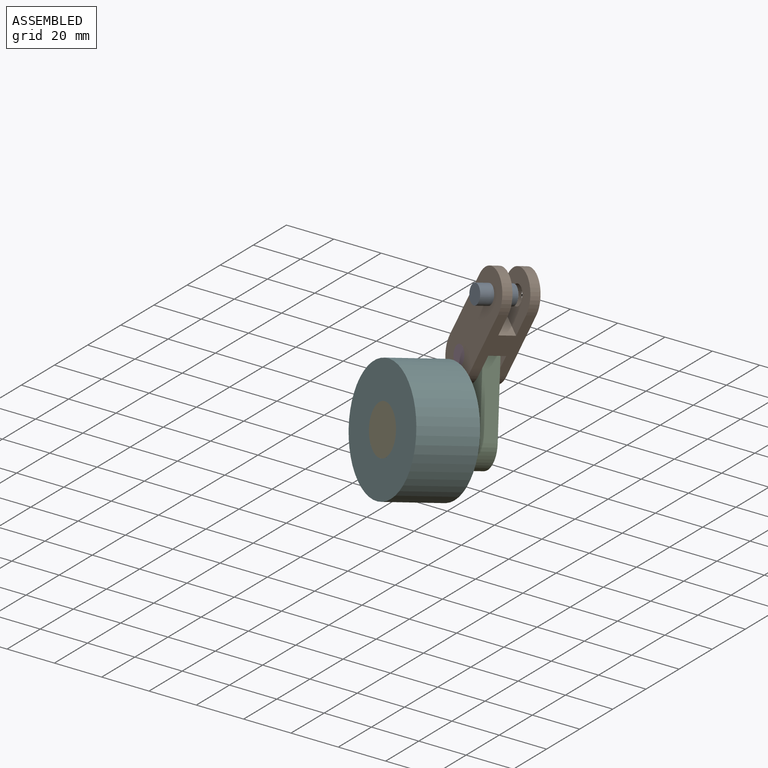
[diagram: assembled view]
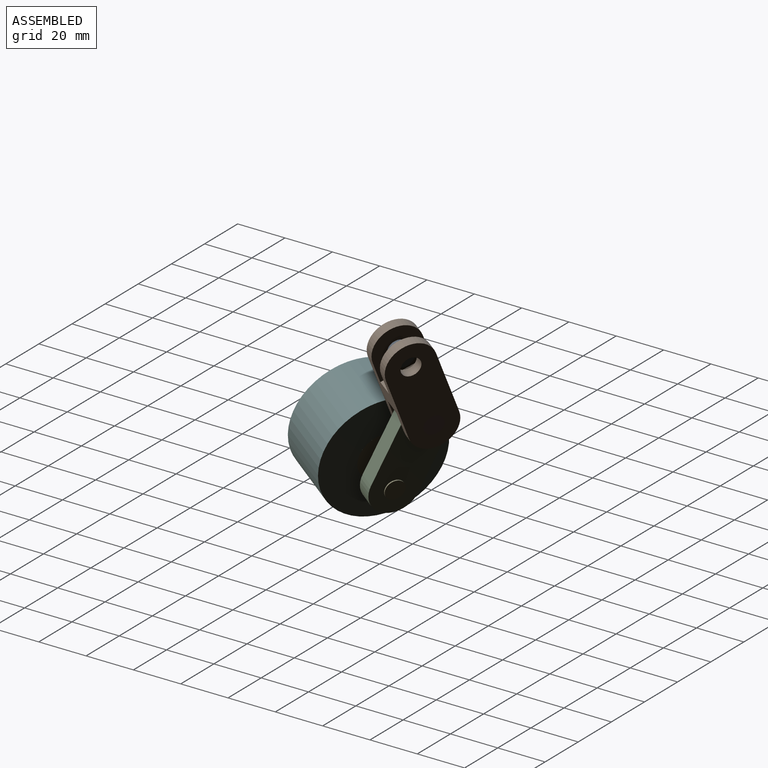
[diagram: assembled view, second angle]
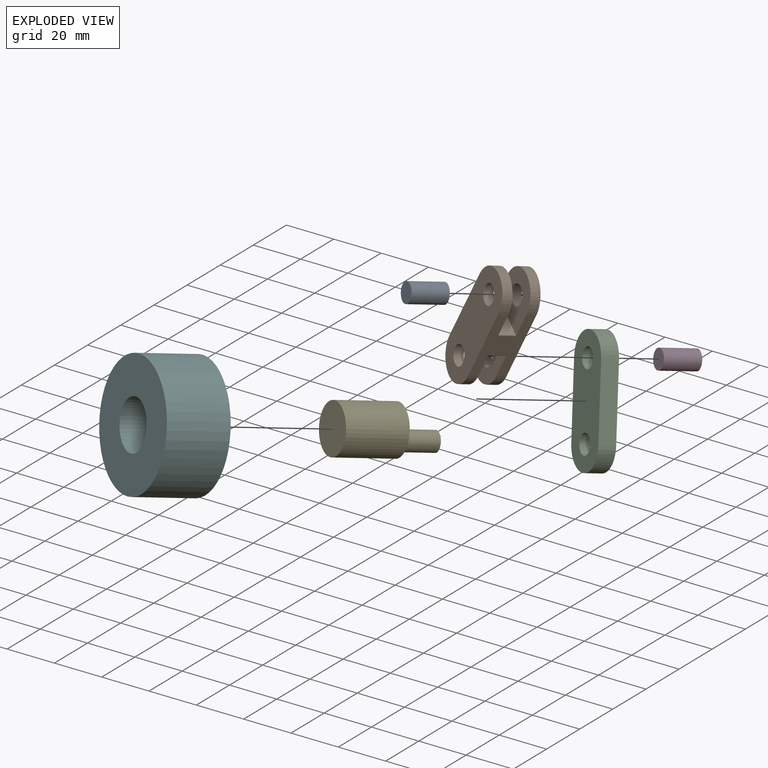
[diagram: exploded view]
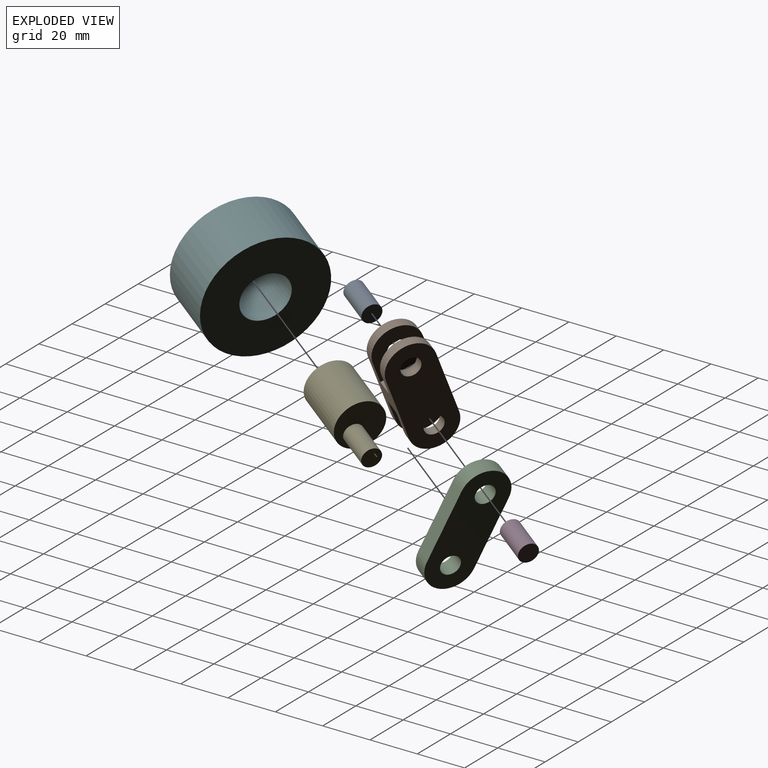
[diagram: exploded view, second angle]
ASSEMBLY  parts=6 mates=5
PART A: 3 faces, bbox 8x15x8 mm
  f0: cylinder r=4mm len=15mm, axis (0,1,0), area 377mm2, adj f1,f2
  f1: plane 8x8mm, normal (0,-1,0), area 50.3mm2, adj f0
  f2: plane 8x8mm, normal (0,1,0), area 50.3mm2, adj f0
PART B: 18 faces, bbox 50x15x20 mm
  f0: cylinder r=10mm len=20mm, axis (0,1,0), area 125.7mm2, adj f1,f3,f11,f16
  f1: plane 30x15mm, normal (0,0,-1), area 310mm2, adj f0,f5,f6,f9,f10,f11,f12,f13
  f2: cylinder r=4mm len=8mm, axis (0,1,0), area 100.5mm2, adj f11,f16
  f3: plane 30x15mm, normal (0,0,1), area 310mm2, adj f0,f5,f6,f9,f10,f11,f12,f13
  f4: cylinder r=4mm len=8mm, axis (0,1,0), area 100.5mm2, adj f10,f12
  f5: cylinder r=10mm len=20mm, axis (0,1,0), area 125.7mm2, adj f1,f3,f10,f12
  f6: cylinder r=10mm len=20mm, axis (0,1,0), area 125.7mm2, adj f1,f3,f10,f15
  f7: cylinder r=4mm len=8mm, axis (0,1,0), area 100.5mm2, adj f11,f14
  f8: cylinder r=4mm len=8mm, axis (0,1,0), area 100.5mm2, adj f10,f15
  f9: cylinder r=10mm len=20mm, axis (0,1,0), area 125.7mm2, adj f1,f3,f11,f14
  f10: plane 50x20mm, normal (0,-1,0), area 813.6mm2, adj f1,f3,f4,f5,f6,f8
  f11: plane 50x20mm, normal (0,1,0), area 813.6mm2, adj f0,f1,f2,f3,f7,f9
  f12: plane 20x20mm, normal (0,1,0), area 306.8mm2, adj f1,f3,f4,f5,f13
  f13: plane 20x7mm, normal (1,0,0), area 140mm2, adj f1,f3,f12,f14
  f14: plane 20x20mm, normal (0,-1,0), area 306.8mm2, adj f1,f3,f7,f9,f13
  f15: plane 20x20mm, normal (0,1,0), area 306.8mm2, adj f1,f3,f6,f8,f17
  f16: plane 20x20mm, normal (0,-1,0), area 306.8mm2, adj f0,f1,f2,f3,f17
  f17: plane 20x7mm, normal (-1,0,0), area 140mm2, adj f1,f3,f15,f16
PART C: 8 faces, bbox 50x7x20 mm
  f0: plane 30x7mm, normal (0,0,1), area 210mm2, adj f1,f5,f6,f7
  f1: cylinder r=10mm len=20mm, axis (0,1,0), area 219.9mm2, adj f0,f2,f6,f7
  f2: plane 30x7mm, normal (0,0,-1), area 210mm2, adj f1,f5,f6,f7
  f3: cylinder r=4mm len=8mm, axis (0,1,0), area 175.9mm2, adj f6,f7
  f4: cylinder r=4mm len=8mm, axis (0,1,0), area 175.9mm2, adj f6,f7
  f5: cylinder r=10mm len=20mm, axis (0,1,0), area 219.9mm2, adj f0,f2,f6,f7
  f6: plane 50x20mm, normal (0,-1,0), area 813.6mm2, adj f0,f1,f2,f3,f4,f5
  f7: plane 50x20mm, normal (0,1,0), area 813.6mm2, adj f0,f1,f2,f3,f4,f5
PART D: same geometry as A
PART E: 5 faces, bbox 20x20x40 mm
  f0: cylinder r=10mm len=25mm, axis (0,0,-1), area 1570.8mm2, adj f1,f2
  f1: plane 20x20mm, normal (0,0,1), area 263.9mm2, adj f0,f3
  f2: plane 20x20mm, normal (0,0,-1), area 314.2mm2, adj f0
  f3: cylinder r=4mm len=15mm, axis (0,0,-1), area 377mm2, adj f1,f4
  f4: plane 8x8mm, normal (0,0,1), area 50.3mm2, adj f3
PART F: 4 faces, bbox 50x25x50 mm
  f0: cylinder r=10mm len=25mm, axis (0,1,0), area 1570.8mm2, adj f2,f3
  f1: cylinder r=25mm len=50mm, axis (0,1,0), area 3927mm2, adj f2,f3
  f2: plane 50x50mm, normal (0,-1,0), area 1649.3mm2, adj f0,f1
  f3: plane 50x50mm, normal (0,1,0), area 1649.3mm2, adj f0,f1
PLACE A rot(axis=(-0.28,-0.96,0.05),155.6deg) t=(-1.25,-30.16,49.98)mm fixed
PLACE B rot(axis=(0.18,0.95,-0.26),118.9deg) t=(-16.59,-17.24,40.8)mm
PLACE C rot(axis=(0.09,0.9,-0.42),78.7deg) t=(-20.07,-22.13,13.57)mm
PLACE D rot(axis=(0.18,0.95,-0.26),118.9deg) t=(-16.59,-17.24,40.8)mm
PLACE E rot(axis=(-0.93,0.36,-0.12),103.4deg) t=(-29.96,-45.61,7.9)mm
PLACE F rot(axis=(-0.38,-0.9,-0.21),79.6deg) t=(-29.96,-45.61,7.9)mm fixed
MATE revolute C.f1 <-> B.f4  axis (0.48,0.85,-0.21) through (-23.12,-16.92,27.3)mm
MATE revolute E.f3 <-> C.f5  axis (-0.48,-0.85,0.21) through (-18.72,-30.3,0.58)mm
MATE fastened D.f0 <-> B.f4  axis (0.48,0.85,-0.21) through (-23.12,-16.92,27.3)mm
MATE revolute F.f1 <-> E.f0  axis (0.48,0.85,-0.21) through (-29.96,-45.61,7.9)mm
MATE revolute A.f0 <-> B.f2  axis (0.48,0.85,-0.21) through (-12.73,-22.22,55.48)mm
